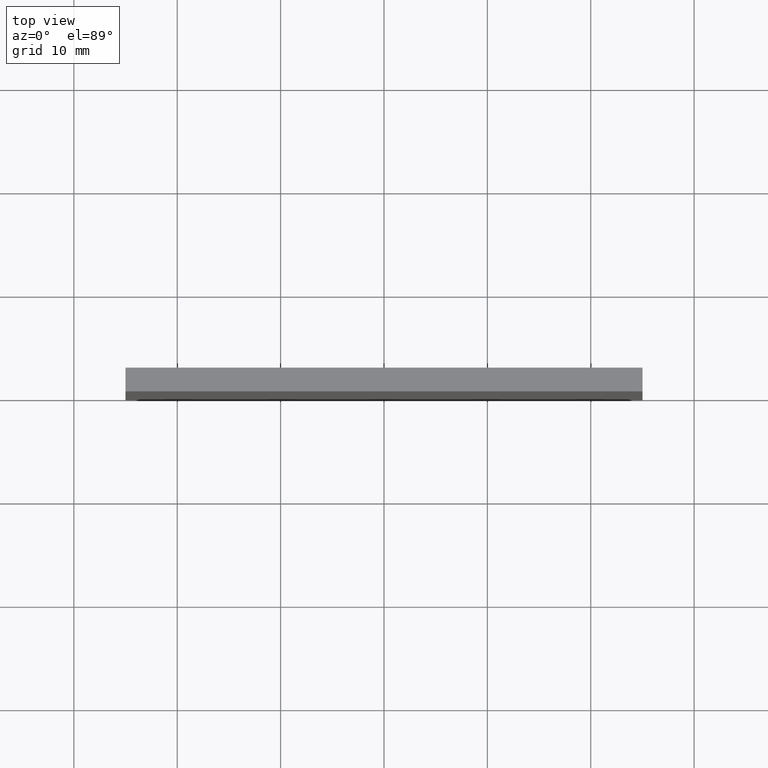
[diagram: clean part render]
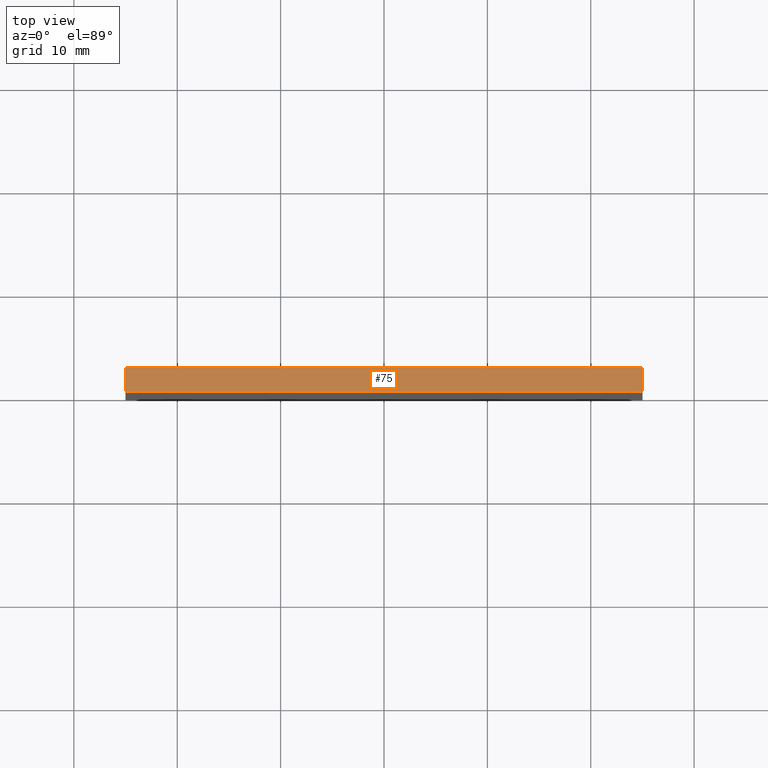
[diagram: same view with one face highlighted and labeled with its STEP entity id]
A machine part, top view. The second image highlights one B-rep face of the part: STEP entity #75.
In plain terms, the highlighted planar face has unit normal (0, 0, -1).
Its self-contained STEP definition (entity closure, byte-faithful):
#2 = LINE ( 'NONE', #202, #191 ) ;
#11 = ORIENTED_EDGE ( 'NONE', *, *, #82, .T. ) ;
#16 = VECTOR ( 'NONE', #91, 1000.000000000000000 ) ;
#26 = VERTEX_POINT ( 'NONE', #170 ) ;
#59 = AXIS2_PLACEMENT_3D ( 'NONE', #161, #120, #131 ) ;
#60 = VERTEX_POINT ( 'NONE', #189 ) ;
#65 = DIRECTION ( 'NONE',  ( 1.000000000000000000, 0.0000000000000000000, 0.0000000000000000000 ) ) ;
#67 = CARTESIAN_POINT ( 'NONE',  ( 24.99999999999999600, 0.0000000000000000000, 25.00000000000000400 ) ) ;
#74 = DIRECTION ( 'NONE',  ( 1.000000000000000000, 0.0000000000000000000, 0.0000000000000000000 ) ) ;
#75 = ADVANCED_FACE ( 'NONE', ( #162 ), #129, .F. ) ;
#82 = EDGE_CURVE ( 'NONE', #60, #115, #2, .T. ) ;
#91 = DIRECTION ( 'NONE',  ( -0.0000000000000000000, -1.000000000000000000, -0.0000000000000000000 ) ) ;
#93 = LINE ( 'NONE', #123, #185 ) ;
#97 = EDGE_CURVE ( 'NONE', #117, #60, #93, .T. ) ;
#105 = EDGE_CURVE ( 'NONE', #117, #26, #139, .T. ) ;
#109 = ORIENTED_EDGE ( 'NONE', *, *, #128, .F. ) ;
#115 = VERTEX_POINT ( 'NONE', #67 ) ;
#117 = VERTEX_POINT ( 'NONE', #179 ) ;
#119 = VECTOR ( 'NONE', #65, 1000.000000000000000 ) ;
#120 = DIRECTION ( 'NONE',  ( 0.0000000000000000000, 0.0000000000000000000, -1.000000000000000000 ) ) ;
#123 = CARTESIAN_POINT ( 'NONE',  ( -25.00000000000000400, 2.299999999999999800, 25.00000000000000400 ) ) ;
#128 = EDGE_CURVE ( 'NONE', #26, #115, #167, .T. ) ;
#129 = PLANE ( 'NONE',  #59 ) ;
#131 = DIRECTION ( 'NONE',  ( -1.000000000000000000, 0.0000000000000000000, -0.0000000000000000000 ) ) ;
#133 = ORIENTED_EDGE ( 'NONE', *, *, #105, .F. ) ;
#138 = ORIENTED_EDGE ( 'NONE', *, *, #97, .T. ) ;
#139 = LINE ( 'NONE', #171, #119 ) ;
#161 = CARTESIAN_POINT ( 'NONE',  ( -25.00000000000000400, 2.299999999999999800, 25.00000000000000400 ) ) ;
#162 = FACE_OUTER_BOUND ( 'NONE', #196, .T. ) ;
#167 = LINE ( 'NONE', #200, #16 ) ;
#170 = CARTESIAN_POINT ( 'NONE',  ( 24.99999999999999600, 2.299999999999999800, 25.00000000000000400 ) ) ;
#171 = CARTESIAN_POINT ( 'NONE',  ( -25.00000000000000400, 2.299999999999999800, 25.00000000000000400 ) ) ;
#179 = CARTESIAN_POINT ( 'NONE',  ( -25.00000000000000400, 2.299999999999999800, 25.00000000000000400 ) ) ;
#185 = VECTOR ( 'NONE', #190, 1000.000000000000000 ) ;
#189 = CARTESIAN_POINT ( 'NONE',  ( -25.00000000000000400, 0.0000000000000000000, 25.00000000000000400 ) ) ;
#190 = DIRECTION ( 'NONE',  ( -0.0000000000000000000, -1.000000000000000000, -0.0000000000000000000 ) ) ;
#191 = VECTOR ( 'NONE', #74, 1000.000000000000000 ) ;
#196 = EDGE_LOOP ( 'NONE', ( #11, #109, #133, #138 ) ) ;
#200 = CARTESIAN_POINT ( 'NONE',  ( 24.99999999999999600, 2.299999999999999800, 25.00000000000000400 ) ) ;
#202 = CARTESIAN_POINT ( 'NONE',  ( -25.00000000000000400, 0.0000000000000000000, 25.00000000000000400 ) ) ;